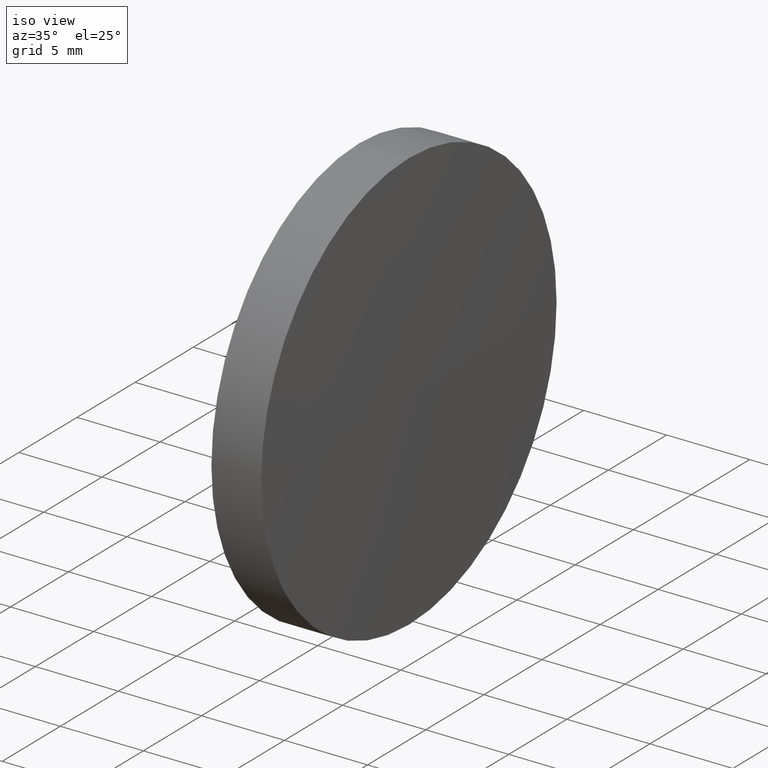
[diagram: clean part render]
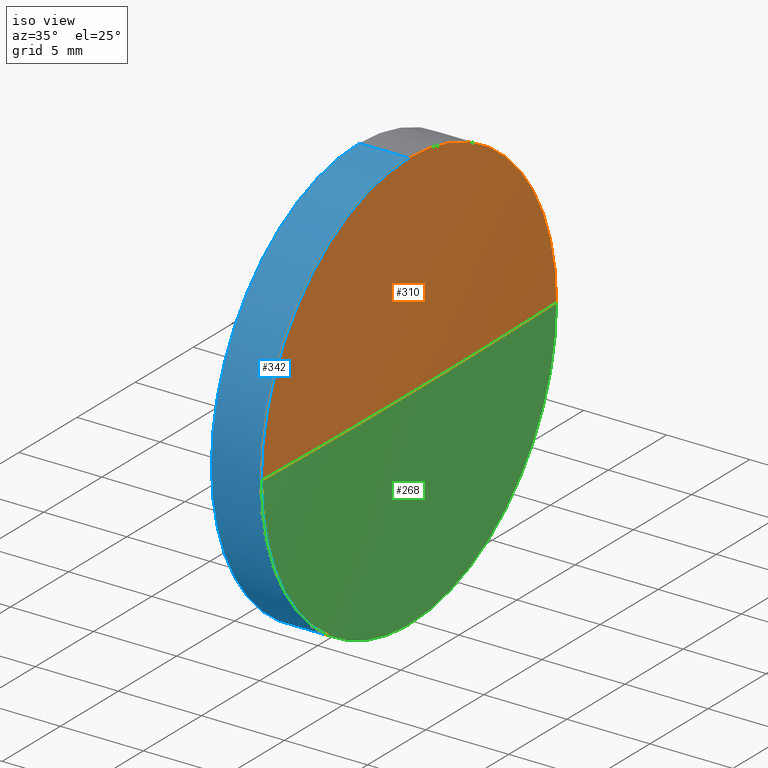
[diagram: same view with three faces highlighted in distinct colors, each labeled with its STEP entity id]
A machine part, iso view with three faces highlighted in distinct colors.
Their STEP definitions:

[orange] entity #310 — the highlighted spherical surface has radius 461.072 mm.
#7 = AXIS2_PLACEMENT_3D ( 'NONE', #62, #30, #26 ) ;
#15 = EDGE_LOOP ( 'NONE', ( #81, #239, #38, #47 ) ) ;
#26 = DIRECTION ( 'NONE',  ( 1.000000000000000000, 0.0000000000000000000, 0.0000000000000000000 ) ) ;
#30 = DIRECTION ( 'NONE',  ( -0.0000000000000000000, 0.0000000000000000000, 1.000000000000000000 ) ) ;
#33 = AXIS2_PLACEMENT_3D ( 'NONE', #246, #326, #90 ) ;
#38 = ORIENTED_EDGE ( 'NONE', *, *, #181, .F. ) ;
#39 = CARTESIAN_POINT ( 'NONE',  ( 87.95817263180538200, 48.61611302318477400, 12.69999999999998900 ) ) ;
#47 = ORIENTED_EDGE ( 'NONE', *, *, #68, .F. ) ;
#55 = FACE_OUTER_BOUND ( 'NONE', #15, .T. ) ;
#62 = CARTESIAN_POINT ( 'NONE',  ( -372.9391657802283900, 48.61611302318455300, 0.0000000000000000000 ) ) ;
#63 = AXIS2_PLACEMENT_3D ( 'NONE', #201, #256, #146 ) ;
#64 = DIRECTION ( 'NONE',  ( 0.0000000000000000000, 0.0000000000000000000, 1.000000000000000000 ) ) ;
#68 = EDGE_CURVE ( 'NONE', #183, #317, #292, .T. ) ;
#81 = ORIENTED_EDGE ( 'NONE', *, *, #195, .F. ) ;
#83 = EDGE_CURVE ( 'NONE', #214, #184, #334, .T. ) ;
#90 = DIRECTION ( 'NONE',  ( 0.0000000000000000000, 0.0000000000000000000, 1.000000000000000000 ) ) ;
#94 = DIRECTION ( 'NONE',  ( -0.0000000000000000000, 0.0000000000000000000, -1.000000000000000000 ) ) ;
#120 = CARTESIAN_POINT ( 'NONE',  ( 88.13311332067003400, 48.61611302318458200, 0.0000000000000000000 ) ) ;
#146 = DIRECTION ( 'NONE',  ( 0.0000000000000000000, 1.000000000000000000, 1.224646799147353200E-016 ) ) ;
#171 = DIRECTION ( 'NONE',  ( -1.000000000000000000, -0.0000000000000000000, -0.0000000000000000000 ) ) ;
#179 = AXIS2_PLACEMENT_3D ( 'NONE', #327, #171, #64 ) ;
#181 = EDGE_CURVE ( 'NONE', #317, #184, #249, .T. ) ;
#183 = VERTEX_POINT ( 'NONE', #219 ) ;
#184 = VERTEX_POINT ( 'NONE', #324 ) ;
#195 = EDGE_CURVE ( 'NONE', #214, #183, #200, .T. ) ;
#200 = CIRCLE ( 'NONE', #63, 461.0722791008984100 ) ;
#201 = CARTESIAN_POINT ( 'NONE',  ( -372.9391657802283900, 48.61611302318455300, 0.0000000000000000000 ) ) ;
#214 = VERTEX_POINT ( 'NONE', #120 ) ;
#219 = CARTESIAN_POINT ( 'NONE',  ( 87.95817263180541100, 35.91611302318504800, -1.555301434917077300E-015 ) ) ;
#236 = CARTESIAN_POINT ( 'NONE',  ( -372.9391657802283900, 48.61611302318455300, 0.0000000000000000000 ) ) ;
#239 = ORIENTED_EDGE ( 'NONE', *, *, #83, .T. ) ;
#243 = SPHERICAL_SURFACE ( 'NONE', #280, 461.0722791008984100 ) ;
#246 = CARTESIAN_POINT ( 'NONE',  ( 87.95817263180538200, 48.61611302318477400, 0.0000000000000000000 ) ) ;
#249 = CIRCLE ( 'NONE', #179, 12.69999999999998900 ) ;
#256 = DIRECTION ( 'NONE',  ( 0.0000000000000000000, 1.224646799147353200E-016, -1.000000000000000000 ) ) ;
#276 = DIRECTION ( 'NONE',  ( 0.0000000000000000000, 1.000000000000000000, 0.0000000000000000000 ) ) ;
#280 = AXIS2_PLACEMENT_3D ( 'NONE', #236, #94, #276 ) ;
#292 = CIRCLE ( 'NONE', #33, 12.69999999999998900 ) ;
#310 = ADVANCED_FACE ( 'NONE', ( #55 ), #243, .T. ) ;
#317 = VERTEX_POINT ( 'NONE', #39 ) ;
#324 = CARTESIAN_POINT ( 'NONE',  ( 87.95817263180541100, 61.31611302318427900, 0.0000000000000000000 ) ) ;
#326 = DIRECTION ( 'NONE',  ( -1.000000000000000000, -0.0000000000000000000, -0.0000000000000000000 ) ) ;
#327 = CARTESIAN_POINT ( 'NONE',  ( 87.95817263180538200, 48.61611302318477400, 0.0000000000000000000 ) ) ;
#334 = CIRCLE ( 'NONE', #7, 461.0722791008984100 ) ;

[blue] entity #342 — the highlighted cylindrical surface (partial cylindrical patch) has radius 12.7 mm, axis along (-1, -0, -0).
#2 = CARTESIAN_POINT ( 'NONE',  ( 83.37198105152671700, 48.61611302318477400, 12.69999999999982000 ) ) ;
#4 = CARTESIAN_POINT ( 'NONE',  ( 87.95817263180538200, 48.61611302318477400, 0.0000000000000000000 ) ) ;
#5 = DIRECTION ( 'NONE',  ( -1.000000000000000000, -0.0000000000000000000, -0.0000000000000000000 ) ) ;
#10 = VERTEX_POINT ( 'NONE', #165 ) ;
#11 = LINE ( 'NONE', #254, #153 ) ;
#21 = CYLINDRICAL_SURFACE ( 'NONE', #234, 12.69999999999982000 ) ;
#25 = CARTESIAN_POINT ( 'NONE',  ( 84.95821491751965500, 48.61611302318477400, 0.0000000000000000000 ) ) ;
#31 = ORIENTED_EDGE ( 'NONE', *, *, #301, .T. ) ;
#33 = AXIS2_PLACEMENT_3D ( 'NONE', #246, #326, #90 ) ;
#37 = ORIENTED_EDGE ( 'NONE', *, *, #283, .F. ) ;
#39 = CARTESIAN_POINT ( 'NONE',  ( 87.95817263180538200, 48.61611302318477400, 12.69999999999998900 ) ) ;
#44 = AXIS2_PLACEMENT_3D ( 'NONE', #25, #223, #272 ) ;
#59 = DIRECTION ( 'NONE',  ( 0.0000000000000000000, 0.0000000000000000000, 1.000000000000000000 ) ) ;
#65 = DIRECTION ( 'NONE',  ( 0.0000000000000000000, 0.0000000000000000000, 1.000000000000000000 ) ) ;
#68 = EDGE_CURVE ( 'NONE', #183, #317, #292, .T. ) ;
#71 = CARTESIAN_POINT ( 'NONE',  ( 83.37198105152671700, 48.61611302318477400, 0.0000000000000000000 ) ) ;
#84 = DIRECTION ( 'NONE',  ( -1.000000000000000000, -0.0000000000000000000, -0.0000000000000000000 ) ) ;
#90 = DIRECTION ( 'NONE',  ( 0.0000000000000000000, 0.0000000000000000000, 1.000000000000000000 ) ) ;
#92 = EDGE_CURVE ( 'NONE', #279, #10, #265, .T. ) ;
#95 = CARTESIAN_POINT ( 'NONE',  ( 87.95817263180538200, 48.61611302318477400, -12.69999999999998900 ) ) ;
#112 = EDGE_LOOP ( 'NONE', ( #37, #212, #133, #31, #205, #325 ) ) ;
#115 = EDGE_CURVE ( 'NONE', #290, #279, #189, .T. ) ;
#123 = LINE ( 'NONE', #2, #319 ) ;
#127 = DIRECTION ( 'NONE',  ( -1.000000000000000000, -0.0000000000000000000, -0.0000000000000000000 ) ) ;
#129 = AXIS2_PLACEMENT_3D ( 'NONE', #193, #84, #59 ) ;
#133 = ORIENTED_EDGE ( 'NONE', *, *, #68, .T. ) ;
#153 = VECTOR ( 'NONE', #127, 1000.000000000000000 ) ;
#165 = CARTESIAN_POINT ( 'NONE',  ( 84.95821491751965500, 48.61611302318477400, 12.69999999999964900 ) ) ;
#173 = CARTESIAN_POINT ( 'NONE',  ( 84.95821491751965500, 48.61611302318477400, -12.69999999999964900 ) ) ;
#177 = DIRECTION ( 'NONE',  ( 0.0000000000000000000, 0.0000000000000000000, 1.000000000000000000 ) ) ;
#183 = VERTEX_POINT ( 'NONE', #219 ) ;
#189 = CIRCLE ( 'NONE', #129, 12.69999999999964900 ) ;
#193 = CARTESIAN_POINT ( 'NONE',  ( 84.95821491751965500, 48.61611302318477400, 0.0000000000000000000 ) ) ;
#204 = CARTESIAN_POINT ( 'NONE',  ( 84.95821491751965500, 35.91611302318524000, -1.555301434917192300E-015 ) ) ;
#205 = ORIENTED_EDGE ( 'NONE', *, *, #92, .F. ) ;
#212 = ORIENTED_EDGE ( 'NONE', *, *, #322, .T. ) ;
#219 = CARTESIAN_POINT ( 'NONE',  ( 87.95817263180541100, 35.91611302318504800, -1.555301434917077300E-015 ) ) ;
#223 = DIRECTION ( 'NONE',  ( -1.000000000000000000, -0.0000000000000000000, -0.0000000000000000000 ) ) ;
#228 = DIRECTION ( 'NONE',  ( -1.000000000000000000, -0.0000000000000000000, -0.0000000000000000000 ) ) ;
#232 = AXIS2_PLACEMENT_3D ( 'NONE', #4, #228, #65 ) ;
#233 = CIRCLE ( 'NONE', #232, 12.69999999999998900 ) ;
#234 = AXIS2_PLACEMENT_3D ( 'NONE', #71, #300, #177 ) ;
#246 = CARTESIAN_POINT ( 'NONE',  ( 87.95817263180538200, 48.61611302318477400, 0.0000000000000000000 ) ) ;
#254 = CARTESIAN_POINT ( 'NONE',  ( 83.37198105152671700, 48.61611302318477400, -12.69999999999982000 ) ) ;
#265 = CIRCLE ( 'NONE', #44, 12.69999999999964900 ) ;
#272 = DIRECTION ( 'NONE',  ( 0.0000000000000000000, 0.0000000000000000000, 1.000000000000000000 ) ) ;
#279 = VERTEX_POINT ( 'NONE', #204 ) ;
#281 = FACE_OUTER_BOUND ( 'NONE', #112, .T. ) ;
#283 = EDGE_CURVE ( 'NONE', #344, #290, #11, .T. ) ;
#290 = VERTEX_POINT ( 'NONE', #173 ) ;
#292 = CIRCLE ( 'NONE', #33, 12.69999999999998900 ) ;
#300 = DIRECTION ( 'NONE',  ( -1.000000000000000000, -0.0000000000000000000, -0.0000000000000000000 ) ) ;
#301 = EDGE_CURVE ( 'NONE', #317, #10, #123, .T. ) ;
#317 = VERTEX_POINT ( 'NONE', #39 ) ;
#319 = VECTOR ( 'NONE', #5, 1000.000000000000000 ) ;
#322 = EDGE_CURVE ( 'NONE', #344, #183, #233, .T. ) ;
#325 = ORIENTED_EDGE ( 'NONE', *, *, #115, .F. ) ;
#326 = DIRECTION ( 'NONE',  ( -1.000000000000000000, -0.0000000000000000000, -0.0000000000000000000 ) ) ;
#342 = ADVANCED_FACE ( 'NONE', ( #281 ), #21, .T. ) ;
#344 = VERTEX_POINT ( 'NONE', #95 ) ;

[green] entity #268 — the highlighted spherical surface has radius 461.072 mm.
#4 = CARTESIAN_POINT ( 'NONE',  ( 87.95817263180538200, 48.61611302318477400, 0.0000000000000000000 ) ) ;
#7 = AXIS2_PLACEMENT_3D ( 'NONE', #62, #30, #26 ) ;
#20 = SPHERICAL_SURFACE ( 'NONE', #266, 461.0722791008984100 ) ;
#26 = DIRECTION ( 'NONE',  ( 1.000000000000000000, 0.0000000000000000000, 0.0000000000000000000 ) ) ;
#28 = FACE_OUTER_BOUND ( 'NONE', #61, .T. ) ;
#30 = DIRECTION ( 'NONE',  ( -0.0000000000000000000, 0.0000000000000000000, 1.000000000000000000 ) ) ;
#52 = ORIENTED_EDGE ( 'NONE', *, *, #83, .F. ) ;
#61 = EDGE_LOOP ( 'NONE', ( #52, #316, #198, #258 ) ) ;
#62 = CARTESIAN_POINT ( 'NONE',  ( -372.9391657802283900, 48.61611302318455300, 0.0000000000000000000 ) ) ;
#63 = AXIS2_PLACEMENT_3D ( 'NONE', #201, #256, #146 ) ;
#65 = DIRECTION ( 'NONE',  ( 0.0000000000000000000, 0.0000000000000000000, 1.000000000000000000 ) ) ;
#83 = EDGE_CURVE ( 'NONE', #214, #184, #334, .T. ) ;
#93 = DIRECTION ( 'NONE',  ( 0.0000000000000000000, 1.000000000000000000, 0.0000000000000000000 ) ) ;
#95 = CARTESIAN_POINT ( 'NONE',  ( 87.95817263180538200, 48.61611302318477400, -12.69999999999998900 ) ) ;
#99 = CARTESIAN_POINT ( 'NONE',  ( 87.95817263180538200, 48.61611302318477400, 0.0000000000000000000 ) ) ;
#120 = CARTESIAN_POINT ( 'NONE',  ( 88.13311332067003400, 48.61611302318458200, 0.0000000000000000000 ) ) ;
#124 = CARTESIAN_POINT ( 'NONE',  ( -372.9391657802283900, 48.61611302318455300, 0.0000000000000000000 ) ) ;
#145 = DIRECTION ( 'NONE',  ( 0.0000000000000000000, 0.0000000000000000000, 1.000000000000000000 ) ) ;
#146 = DIRECTION ( 'NONE',  ( 0.0000000000000000000, 1.000000000000000000, 1.224646799147353200E-016 ) ) ;
#182 = AXIS2_PLACEMENT_3D ( 'NONE', #99, #257, #145 ) ;
#183 = VERTEX_POINT ( 'NONE', #219 ) ;
#184 = VERTEX_POINT ( 'NONE', #324 ) ;
#195 = EDGE_CURVE ( 'NONE', #214, #183, #200, .T. ) ;
#198 = ORIENTED_EDGE ( 'NONE', *, *, #322, .F. ) ;
#200 = CIRCLE ( 'NONE', #63, 461.0722791008984100 ) ;
#201 = CARTESIAN_POINT ( 'NONE',  ( -372.9391657802283900, 48.61611302318455300, 0.0000000000000000000 ) ) ;
#202 = EDGE_CURVE ( 'NONE', #184, #344, #304, .T. ) ;
#214 = VERTEX_POINT ( 'NONE', #120 ) ;
#219 = CARTESIAN_POINT ( 'NONE',  ( 87.95817263180541100, 35.91611302318504800, -1.555301434917077300E-015 ) ) ;
#228 = DIRECTION ( 'NONE',  ( -1.000000000000000000, -0.0000000000000000000, -0.0000000000000000000 ) ) ;
#232 = AXIS2_PLACEMENT_3D ( 'NONE', #4, #228, #65 ) ;
#233 = CIRCLE ( 'NONE', #232, 12.69999999999998900 ) ;
#256 = DIRECTION ( 'NONE',  ( 0.0000000000000000000, 1.224646799147353200E-016, -1.000000000000000000 ) ) ;
#257 = DIRECTION ( 'NONE',  ( -1.000000000000000000, -0.0000000000000000000, -0.0000000000000000000 ) ) ;
#258 = ORIENTED_EDGE ( 'NONE', *, *, #202, .F. ) ;
#266 = AXIS2_PLACEMENT_3D ( 'NONE', #124, #330, #93 ) ;
#268 = ADVANCED_FACE ( 'NONE', ( #28 ), #20, .T. ) ;
#304 = CIRCLE ( 'NONE', #182, 12.69999999999998900 ) ;
#316 = ORIENTED_EDGE ( 'NONE', *, *, #195, .T. ) ;
#322 = EDGE_CURVE ( 'NONE', #344, #183, #233, .T. ) ;
#324 = CARTESIAN_POINT ( 'NONE',  ( 87.95817263180541100, 61.31611302318427900, 0.0000000000000000000 ) ) ;
#330 = DIRECTION ( 'NONE',  ( -0.0000000000000000000, 0.0000000000000000000, -1.000000000000000000 ) ) ;
#334 = CIRCLE ( 'NONE', #7, 461.0722791008984100 ) ;
#344 = VERTEX_POINT ( 'NONE', #95 ) ;